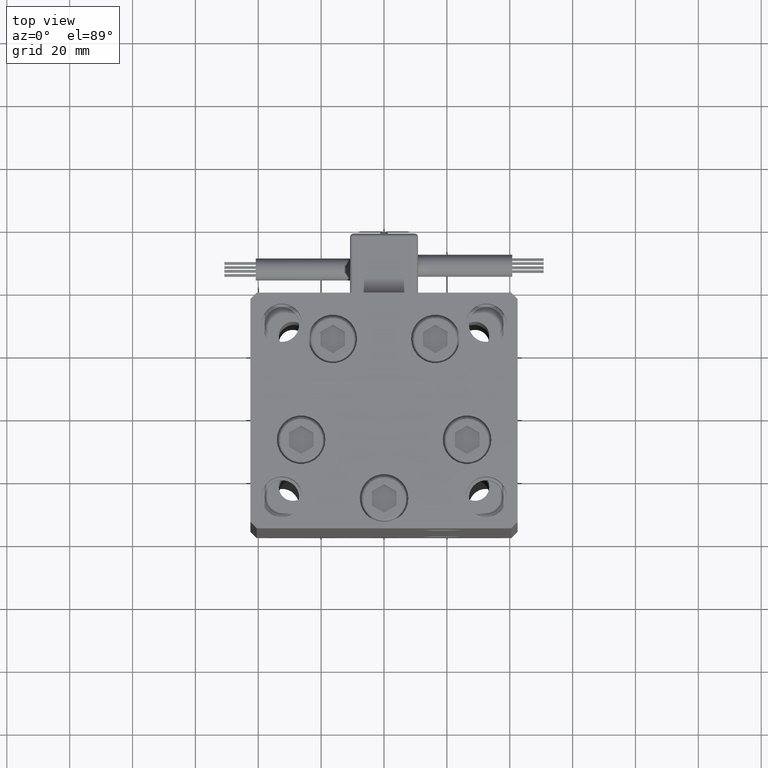
[diagram: clean part render]
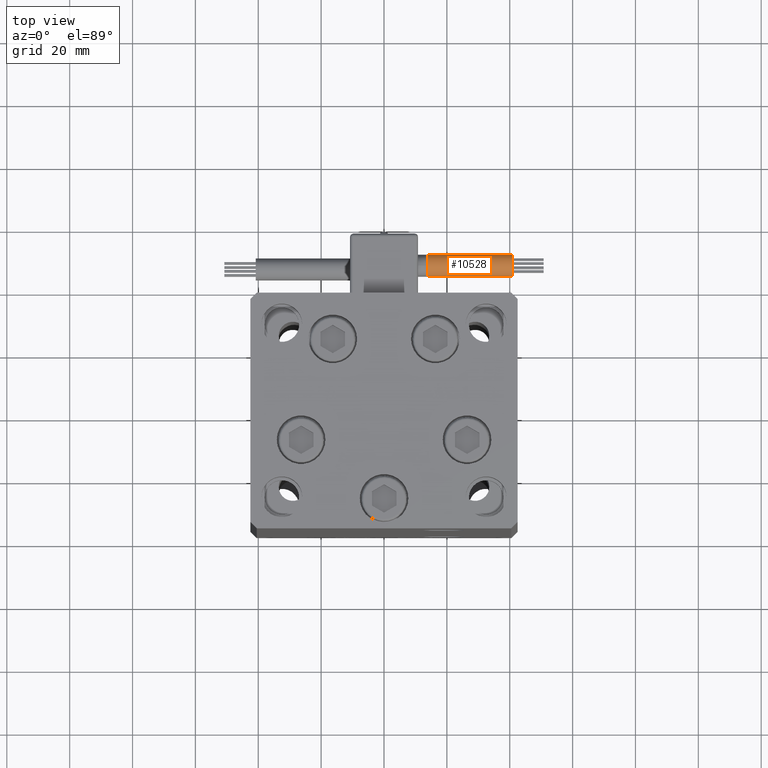
[diagram: same view with one face highlighted and labeled with its STEP entity id]
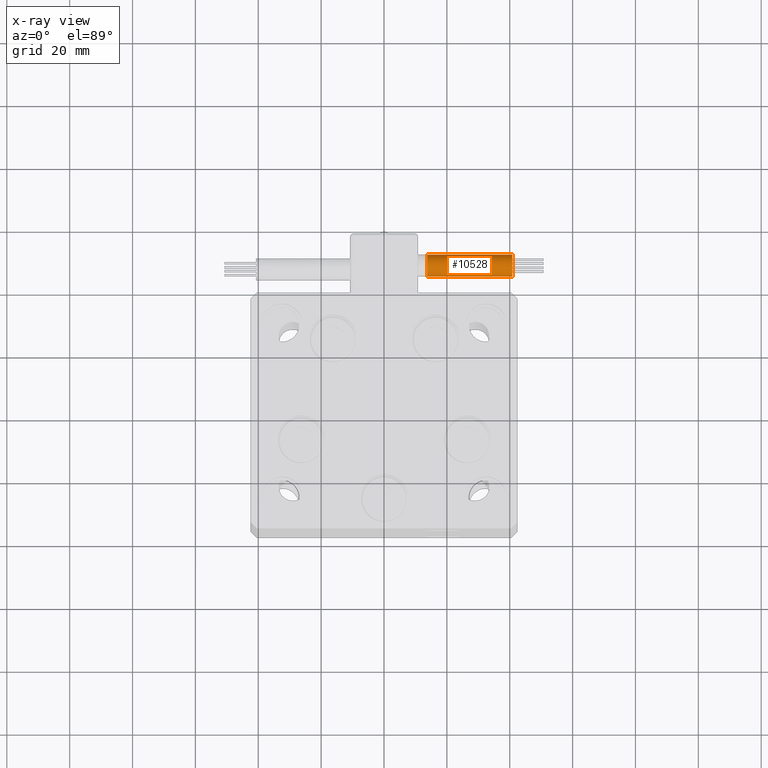
[diagram: x-ray of the same camera — body ghosted, the highlighted face saturated]
A machine part, top view. The second image highlights one B-rep face of the part: STEP entity #10528.
The next image is the same camera in x-ray: the body ghosted, the highlighted face saturated — about 0% of this face is hidden behind the body in this view.
In plain terms, the highlighted cylindrical surface (edge-blend (fillet) strip) has radius 3.5 mm, axis along (1, -0, 0).
Its self-contained STEP definition (entity closure, byte-faithful):
#719 = AXIS2_PLACEMENT_3D ( 'NONE', #46363, #5878, #13851 ) ;
#2138 = CARTESIAN_POINT ( 'NONE',  ( 40.80000000000000426, 38.50000000000000000, -65.00000000000000000 ) ) ;
#2537 = DIRECTION ( 'NONE',  ( 1.000000000000000000, -2.599999999999999847E-16, 2.220446049250000002E-16 ) ) ;
#3603 = VECTOR ( 'NONE', #40596, 1000.000000000000000 ) ;
#3976 = ORIENTED_EDGE ( 'NONE', *, *, #40210, .T. ) ;
#4493 = CARTESIAN_POINT ( 'NONE',  ( 13.79999999999999893, 42.00000000000000000, -65.00000000000000000 ) ) ;
#5878 = DIRECTION ( 'NONE',  ( 1.000000000000000000, 0.000000000000000000, 2.220446049250000002E-16 ) ) ;
#8093 = LINE ( 'NONE', #24343, #3603 ) ;
#8360 = AXIS2_PLACEMENT_3D ( 'NONE', #4493, #31933, #40709 ) ;
#8475 = FACE_OUTER_BOUND ( 'NONE', #37797, .T. ) ;
#10037 = CARTESIAN_POINT ( 'NONE',  ( 40.80000000000000426, 45.50000000000000711, -65.00000000000000000 ) ) ;
#10041 = VECTOR ( 'NONE', #2537, 1000.000000000000000 ) ;
#10528 = ADVANCED_FACE ( 'NONE', ( #8475 ), #40445, .T. ) ;
#10599 = ORIENTED_EDGE ( 'NONE', *, *, #27353, .F. ) ;
#11289 = CARTESIAN_POINT ( 'NONE',  ( 13.79999999999999716, 38.50000000000000000, -65.00000000000000000 ) ) ;
#11394 = AXIS2_PLACEMENT_3D ( 'NONE', #46726, #26463, #29225 ) ;
#11606 = VERTEX_POINT ( 'NONE', #43905 ) ;
#12355 = ORIENTED_EDGE ( 'NONE', *, *, #32682, .T. ) ;
#12530 = VERTEX_POINT ( 'NONE', #39389 ) ;
#13851 = DIRECTION ( 'NONE',  ( 0.000000000000000000, 0.000000000000000000, -1.000000000000000000 ) ) ;
#14064 = AXIS2_PLACEMENT_3D ( 'NONE', #45174, #37178, #25171 ) ;
#16029 = VERTEX_POINT ( 'NONE', #52239 ) ;
#24343 = CARTESIAN_POINT ( 'NONE',  ( 13.80000000000000071, 45.50000000000000711, -65.00000000000000000 ) ) ;
#25171 = DIRECTION ( 'NONE',  ( 0.000000000000000000, 0.000000000000000000, -1.000000000000000000 ) ) ;
#26463 = DIRECTION ( 'NONE',  ( 1.000000000000000000, 0.000000000000000000, 2.220446049250000002E-16 ) ) ;
#27353 = EDGE_CURVE ( 'NONE', #11606, #41104, #8093, .T. ) ;
#28578 = ORIENTED_EDGE ( 'NONE', *, *, #46528, .T. ) ;
#28800 = CIRCLE ( 'NONE', #719, 3.500000000000003109 ) ;
#29225 = DIRECTION ( 'NONE',  ( 0.000000000000000000, 0.000000000000000000, -1.000000000000000000 ) ) ;
#30245 = CIRCLE ( 'NONE', #14064, 3.500000000000003109 ) ;
#31826 = CIRCLE ( 'NONE', #11394, 3.500000000000003109 ) ;
#31933 = DIRECTION ( 'NONE',  ( 1.000000000000000000, -2.599999999999999847E-16, 2.220446049250000002E-16 ) ) ;
#32682 = EDGE_CURVE ( 'NONE', #12530, #16029, #31826, .T. ) ;
#35549 = LINE ( 'NONE', #11289, #10041 ) ;
#37178 = DIRECTION ( 'NONE',  ( 1.000000000000000000, 0.000000000000000000, 2.220446049250000002E-16 ) ) ;
#37797 = EDGE_LOOP ( 'NONE', ( #10599, #3976, #12355, #28578, #38274 ) ) ;
#38274 = ORIENTED_EDGE ( 'NONE', *, *, #45508, .F. ) ;
#39389 = CARTESIAN_POINT ( 'NONE',  ( 13.79999999999999893, 41.99999999999999289, -61.50000000000000000 ) ) ;
#40210 = EDGE_CURVE ( 'NONE', #11606, #12530, #30245, .T. ) ;
#40445 = CYLINDRICAL_SURFACE ( 'NONE', #8360, 3.500000000000003109 ) ;
#40501 = VERTEX_POINT ( 'NONE', #2138 ) ;
#40596 = DIRECTION ( 'NONE',  ( 1.000000000000000000, -2.599999999999999847E-16, 2.220446049250000002E-16 ) ) ;
#40709 = DIRECTION ( 'NONE',  ( -4.956352788505158337E-16, -1.000000000000000000, 0.000000000000000000 ) ) ;
#41104 = VERTEX_POINT ( 'NONE', #10037 ) ;
#43905 = CARTESIAN_POINT ( 'NONE',  ( 13.79999999999999893, 45.50000000000000711, -65.00000000000000000 ) ) ;
#45174 = CARTESIAN_POINT ( 'NONE',  ( 13.79999999999999893, 42.00000000000000000, -65.00000000000000000 ) ) ;
#45508 = EDGE_CURVE ( 'NONE', #41104, #40501, #28800, .T. ) ;
#46363 = CARTESIAN_POINT ( 'NONE',  ( 40.80000000000000426, 42.00000000000000000, -65.00000000000000000 ) ) ;
#46528 = EDGE_CURVE ( 'NONE', #16029, #40501, #35549, .T. ) ;
#46726 = CARTESIAN_POINT ( 'NONE',  ( 13.79999999999999893, 42.00000000000000000, -65.00000000000000000 ) ) ;
#52239 = CARTESIAN_POINT ( 'NONE',  ( 13.79999999999999893, 38.50000000000000000, -65.00000000000000000 ) ) ;